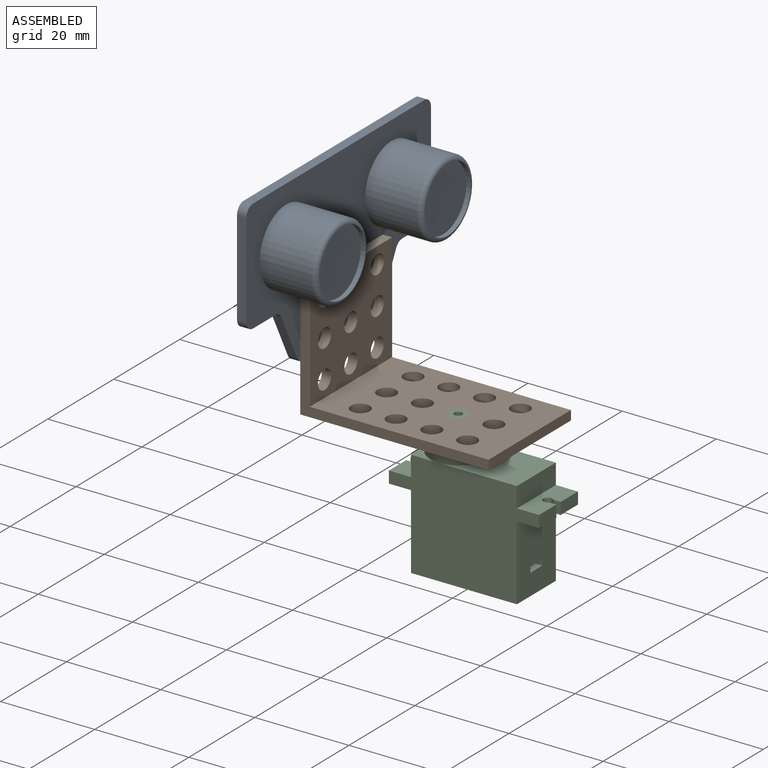
[diagram: assembled view]
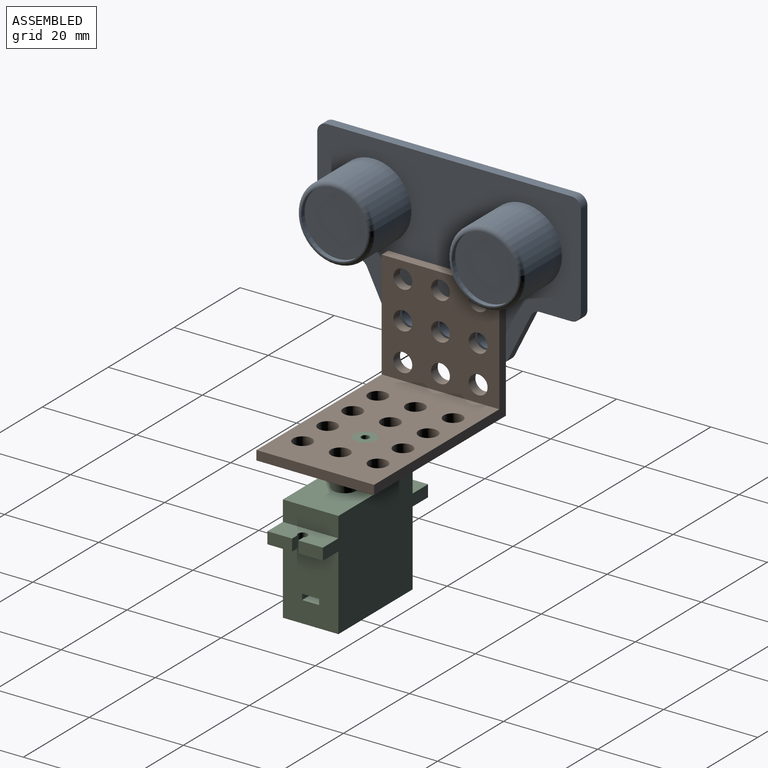
[diagram: assembled view, second angle]
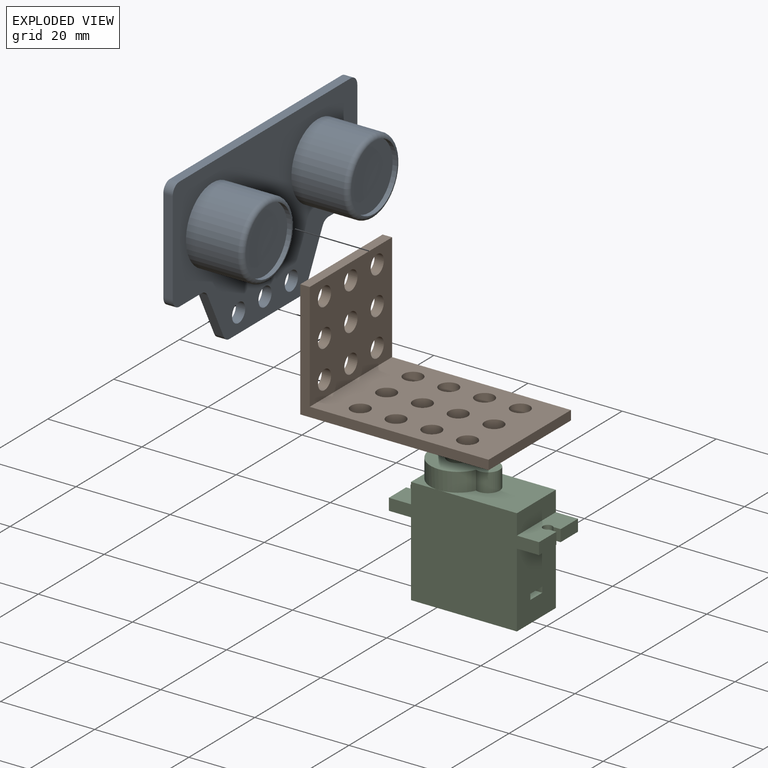
[diagram: exploded view]
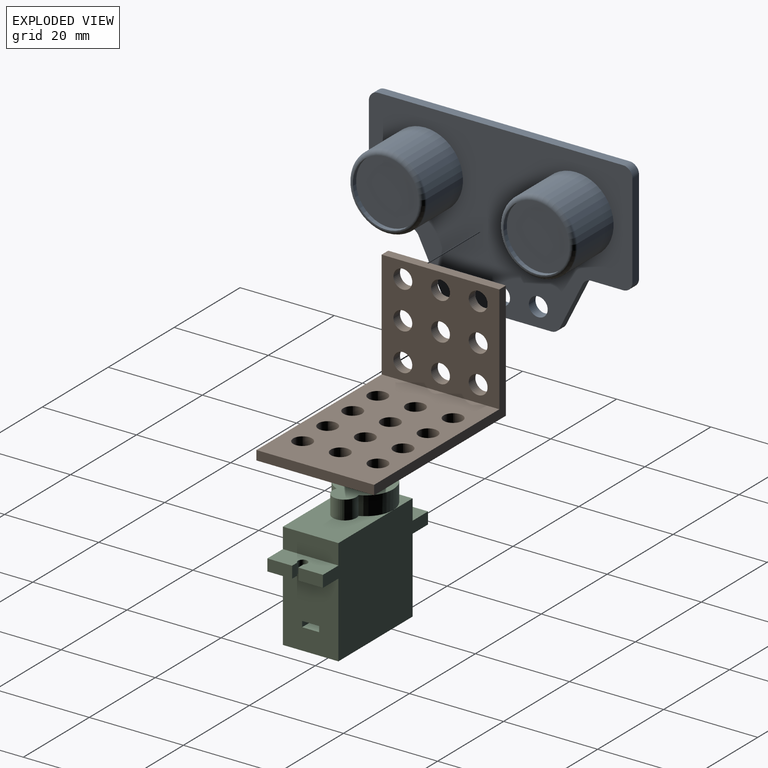
[diagram: exploded view, second angle]
ASSEMBLY  parts=3 mates=2
PART A: 29 faces, bbox 56x14x36 mm
  f0: plane 20x2mm, normal (-1,0,0), area 40mm2, adj f11,f12,f15,f22
  f1: plane 6.76x2mm, normal (0,0,-1), area 13.5mm2, adj f11,f12,f15,f16
  f2: plane 9.79x4.89mm, normal (-0.89,0,-0.45), area 21.9mm2, adj f11,f12,f16,f17
  f3: plane 21.53x2mm, normal (0,0,-1), area 43.1mm2, adj f11,f12,f17,f18
  f4: plane 9.79x4.89mm, normal (0.89,0,-0.45), area 21.9mm2, adj f11,f12,f18,f19
  f5: plane 6.76x2mm, normal (0,0,-1), area 13.5mm2, adj f11,f12,f19,f20
  f6: plane 20x2mm, normal (1,0,0), area 40mm2, adj f11,f12,f20,f21
  f7: cylinder r=2mm len=4mm, axis (0,-1,0), area 25.1mm2, adj f11,f12
  f8: cylinder r=2mm len=4mm, axis (0,-1,0), area 25.1mm2, adj f11,f12
  f9: cylinder r=2mm len=4mm, axis (0,-1,0), area 25.1mm2, adj f11,f12
  f10: plane 52x2mm, normal (0,0,1), area 104mm2, adj f11,f12,f21,f22
  f11: plane 56x36mm, normal (0,1,0), area 1662.9mm2, adj f0,f1,f2,f3,f4,f5,f6,f7
  f12: plane 56x36mm, normal (0,-1,0), area 1260.7mm2, adj f0,f1,f2,f3,f4,f5,f6,f7
  f13: cylinder r=8mm len=16mm, axis (0,1,0), area 552.9mm2, adj f12,f26
  f14: cylinder r=8mm len=16mm, axis (0,1,0), area 552.9mm2, adj f12,f23
  f15: cylinder r=2mm len=2mm, axis (0,1,0), area 6.3mm2, adj f0,f1,f11,f12
  f16: cylinder r=2mm len=2mm, axis (0,1,0), area 4.4mm2, adj f1,f2,f11,f12
  f17: cylinder r=2mm len=2mm, axis (0,-1,0), area 4.4mm2, adj f2,f3,f11,f12
  f18: cylinder r=2mm len=2mm, axis (0,-1,0), area 4.4mm2, adj f3,f4,f11,f12
  f19: cylinder r=2mm len=2mm, axis (0,1,0), area 4.4mm2, adj f4,f5,f11,f12
  f20: cylinder r=2mm len=2mm, axis (0,1,0), area 6.3mm2, adj f5,f6,f11,f12
  f21: cylinder r=2mm len=2mm, axis (0,-1,0), area 6.3mm2, adj f6,f10,f11,f12
  f22: cylinder r=2mm len=2mm, axis (0,-1,0), area 6.3mm2, adj f0,f10,f11,f12
  f23: torus R=7mm, axis (0,-1,0), area 75.4mm2, adj f14,f24
  f24: cylinder r=7mm len=14mm, axis (0,-1,0), area 44mm2, adj f23,f25
  f25: plane 14x14mm, normal (0,-1,0), area 153.9mm2, adj f24
  f26: torus R=7mm, axis (0,-1,0), area 75.4mm2, adj f13,f27
  f27: cylinder r=7mm len=14mm, axis (0,-1,0), area 44mm2, adj f26,f28
  f28: plane 14x14mm, normal (0,-1,0), area 153.9mm2, adj f27
PART B: 29 faces, bbox 40x25x25 mm
  f0: plane 40x25mm, normal (0,0,-1), area 849.2mm2, adj f2,f5,f6,f7,f17,f18,f19,f20
  f1: plane 38x25mm, normal (0,0,1), area 799.2mm2, adj f3,f5,f6,f7,f17,f18,f19,f20
  f2: plane 25x25mm, normal (-1,0,0), area 511.9mm2, adj f0,f4,f6,f7,f8,f9,f10,f11
  f3: plane 25x23mm, normal (1,0,0), area 461.9mm2, adj f1,f4,f6,f7,f8,f9,f10,f11
  f4: plane 25x2mm, normal (0,0,1), area 50mm2, adj f2,f3,f6,f7
  f5: plane 25x2mm, normal (1,0,0), area 50mm2, adj f0,f1,f6,f7
  f6: plane 40x25mm, normal (0,1,0), area 126mm2, adj f0,f1,f2,f3,f4,f5
  f7: plane 40x25mm, normal (0,-1,0), area 126mm2, adj f0,f1,f2,f3,f4,f5
  f8: cylinder r=2mm len=4mm, axis (1,0,0), area 25.1mm2, adj f2,f3
  f9: cylinder r=2mm len=4mm, axis (1,0,0), area 25.1mm2, adj f2,f3
  f10: cylinder r=2mm len=4mm, axis (1,0,0), area 25.1mm2, adj f2,f3
  f11: cylinder r=2mm len=4mm, axis (1,0,0), area 25.1mm2, adj f2,f3
  f12: cylinder r=2mm len=4mm, axis (1,0,0), area 25.1mm2, adj f2,f3
  f13: cylinder r=2mm len=4mm, axis (1,0,0), area 25.1mm2, adj f2,f3
  f14: cylinder r=2mm len=4mm, axis (1,0,0), area 25.1mm2, adj f2,f3
  f15: cylinder r=2mm len=4mm, axis (1,0,0), area 25.1mm2, adj f2,f3
  f16: cylinder r=2mm len=4mm, axis (1,0,0), area 25.1mm2, adj f2,f3
  f17: cylinder r=2mm len=4mm, axis (0,0,1), area 25.1mm2, adj f0,f1
  f18: cylinder r=2mm len=4mm, axis (0,0,1), area 25.1mm2, adj f0,f1
  f19: cylinder r=2mm len=4mm, axis (0,0,1), area 25.1mm2, adj f0,f1
  f20: cylinder r=2mm len=4mm, axis (0,0,1), area 25.1mm2, adj f0,f1
  f21: cylinder r=2mm len=4mm, axis (0,0,1), area 25.1mm2, adj f0,f1
  f22: cylinder r=2mm len=4mm, axis (0,0,1), area 25.1mm2, adj f0,f1
  f23: cylinder r=2mm len=4mm, axis (0,0,1), area 25.1mm2, adj f0,f1
  f24: cylinder r=2mm len=4mm, axis (0,0,1), area 25.1mm2, adj f0,f1
  f25: cylinder r=2mm len=4mm, axis (0,0,1), area 25.1mm2, adj f0,f1
  f26: cylinder r=2mm len=4mm, axis (0,0,1), area 25.1mm2, adj f0,f1
  f27: cylinder r=2mm len=4mm, axis (0,0,1), area 25.1mm2, adj f0,f1
  f28: cylinder r=2mm len=4mm, axis (0,0,1), area 25.1mm2, adj f0,f1
PART C: 35 faces, bbox 31.9x29.9x11.8 mm
  f0: plane 5.25x2.5mm, normal (-1,0,0), area 13.1mm2, adj f2,f10,f14,f30
  f1: plane 5.25x2.5mm, normal (1,0,0), area 13.1mm2, adj f3,f8,f16,f27
  f2: plane 11.8x4.7mm, normal (0,-1,0), area 50.5mm2, adj f0,f7,f8,f10,f15,f28,f29,f30
  f3: plane 11.8x4.7mm, normal (0,-1,0), area 50.5mm2, adj f1,f6,f8,f10,f17,f25,f26,f27
  f4: plane 16.6x11.8mm, normal (0,1,0), area 128.6mm2, adj f8,f10,f11,f18,f19
  f5: plane 5.9x5.9mm, normal (0,1,0), area 7.5mm2, adj f8,f9,f18
  f6: plane 15.9x11.8mm, normal (1,0,0), area 183.3mm2, adj f3,f8,f10,f12,f31,f32,f33,f34
  f7: plane 15.9x11.8mm, normal (-1,0,0), area 183.3mm2, adj f2,f8,f10,f12,f31,f32,f33,f34
  f8: plane 31.9x22.7mm, normal (0,0,1), area 534.2mm2, adj f1,f2,f3,f4,f5,f6,f7,f9
  f9: plane 11.8x4.3mm, normal (-1,0,0), area 50.7mm2, adj f5,f8,f10,f13,f14
  f10: plane 31.9x22.7mm, normal (0,0,-1), area 534.2mm2, adj f0,f2,f3,f4,f6,f7,f9,f11
  f11: plane 11.8x4.3mm, normal (1,0,0), area 50.7mm2, adj f4,f8,f10,f16
  f12: plane 22.5x11.8mm, normal (0,-1,0), area 265.5mm2, adj f6,f7,f8,f10
  f13: plane 5.9x5.9mm, normal (0,1,0), area 7.5mm2, adj f9,f10,f18
  f14: plane 11.8x4.7mm, normal (0,1,0), area 50.5mm2, adj f0,f8,f9,f10,f15,f28,f29,f30
  f15: plane 5.25x2.5mm, normal (-1,0,0), area 13.1mm2, adj f2,f8,f14,f28
  f16: plane 11.8x4.7mm, normal (0,1,0), area 50.5mm2, adj f1,f8,f10,f11,f17,f25,f26,f27
  f17: plane 5.25x2.5mm, normal (1,0,0), area 13.1mm2, adj f3,f10,f16,f26
  f18: cylinder r=5.9mm len=11.8mm, axis (0,-1,0), area 129mm2, adj f4,f5,f13,f19,f20
  f19: cylinder r=2.5mm len=5mm, axis (0,-1,0), area 38.6mm2, adj f4,f18,f20
  f20: plane 14.7x11.8mm, normal (0,1,0), area 105.4mm2, adj f18,f19,f21
  f21: cylinder r=2.3mm len=4.6mm, axis (0,-1,0), area 46.2mm2, adj f20,f23
  f22: cylinder r=0.85mm len=7.2mm, axis (0,-1,0), area 38.5mm2, adj f23,f24
  f23: plane 4.6x4.6mm, normal (0,1,0), area 14.3mm2, adj f21,f22
  f24: plane 1.7x1.7mm, normal (0,1,0), area 2.3mm2, adj f22
  f25: cylinder r=1mm len=2.5mm, axis (0,1,0), area 12.2mm2, adj f3,f16,f26,f27
  f26: plane 2.5x1.54mm, normal (0,0,1), area 3.9mm2, adj f3,f16,f17,f25
  f27: plane 2.5x1.54mm, normal (0,0,-1), area 3.9mm2, adj f1,f3,f16,f25
  f28: plane 2.5x1.54mm, normal (0,0,-1), area 3.9mm2, adj f2,f14,f15,f29
  f29: cylinder r=1mm len=2.5mm, axis (0,1,0), area 12.2mm2, adj f2,f14,f28,f30
  f30: plane 2.5x1.54mm, normal (0,0,1), area 3.9mm2, adj f0,f2,f14,f29
  f31: plane 22.5x1.2mm, normal (0,0,-1), area 27mm2, adj f6,f7,f32,f33
  f32: plane 22.5x3.6mm, normal (0,-1,0), area 81mm2, adj f6,f7,f31,f34
  f33: plane 22.5x3.6mm, normal (0,1,0), area 81mm2, adj f6,f7,f31,f34
  f34: plane 22.5x1.2mm, normal (0,0,1), area 27mm2, adj f6,f7,f32,f33
PLACE A rot(axis=(0,0,1),90deg) t=(-23,-29.69,6.23)mm
PLACE B t=(-22.41,-14.19,9.73)mm
PLACE C rot(axis=(1,0,0),90deg) t=(-3.51,4.21,-20.47)mm
MATE cylindrical A.f8 <-> B.f13  axis (1,0,0) through (-23,-1.69,-1.77)mm
MATE ball C.f18 <-> B.f21  axis (0,0,1) through (2.39,-1.69,-13.27)mm
